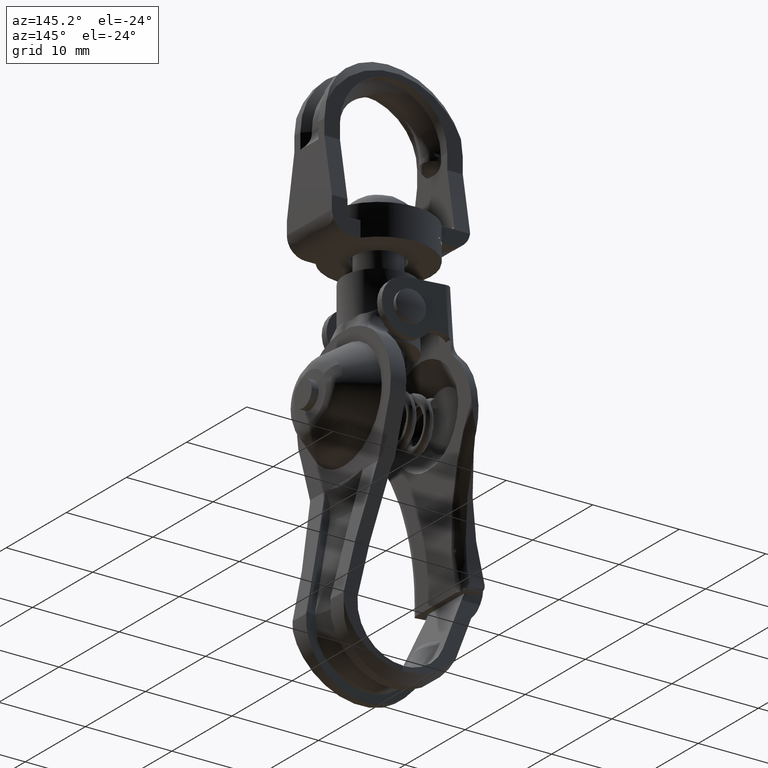
[diagram: clean part render]
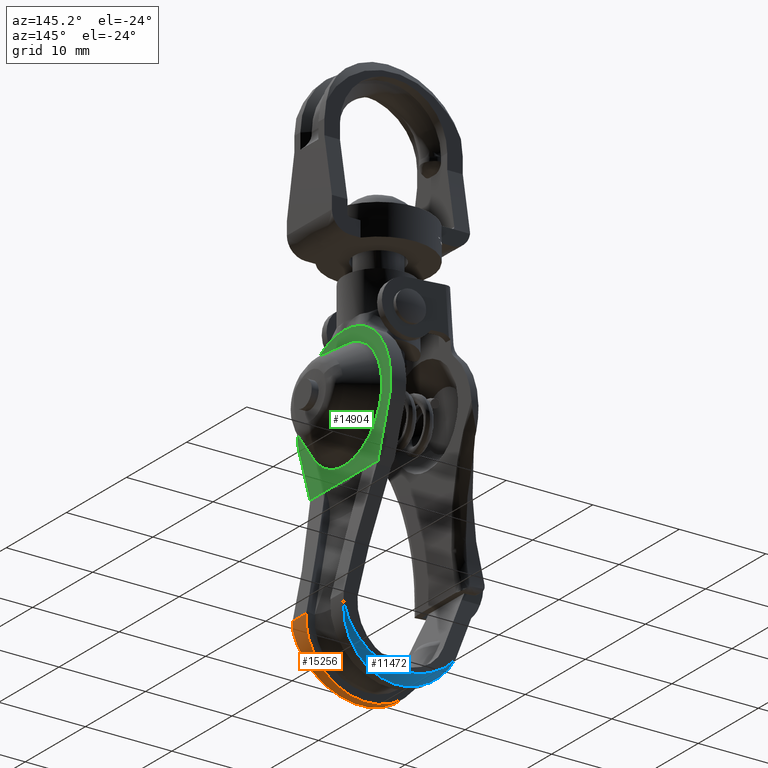
[diagram: same view with three faces highlighted in distinct colors, each labeled with its STEP entity id]
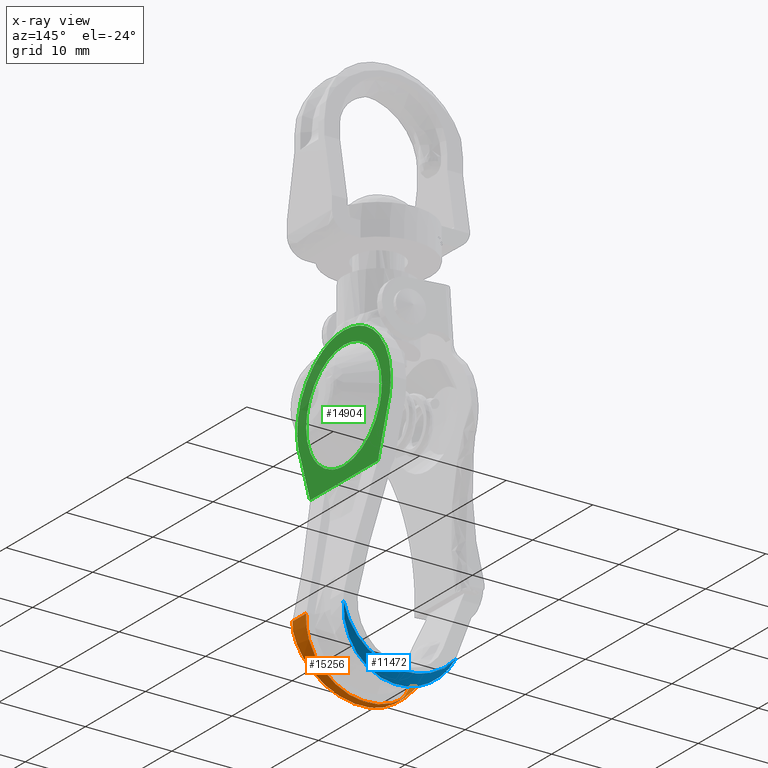
[diagram: x-ray of the same camera — body ghosted, the three highlighted faces saturated]
A machine part, auxiliary view with three faces highlighted in distinct colors.
The next image is the same camera in x-ray (body ghosted, the three faces saturated) — at least one of them is partly hidden behind the body in this view.
Their STEP definitions:

[orange] entity #15256 — the highlighted face is a freeform B-spline surface patch.
#11266=CARTESIAN_POINT('',(-6.294911165316560,-3.726013125309975,-34.561714131132049));
#11267=VERTEX_POINT('',#11266);
#11268=CARTESIAN_POINT('',(6.976595349368139,-4.222251191568015,-32.071941720085903));
#11269=VERTEX_POINT('',#11268);
#11270=CARTESIAN_POINT('',(-6.294911165316506,-3.726013125309961,-34.561714131132042));
#11271=CARTESIAN_POINT('',(-6.129393621015759,-3.660351423743323,-34.902019657072607));
#11272=CARTESIAN_POINT('',(-5.937783730746544,-3.598615233607351,-35.226265352540800));
#11273=CARTESIAN_POINT('',(-5.611619277670555,-3.511465927012832,-35.688712374959891));
#11274=CARTESIAN_POINT('',(-5.496408683270869,-3.483329928498107,-35.838855473840553));
#11275=CARTESIAN_POINT('',(-5.252689760580400,-3.428867148930307,-36.130920590498732));
#11276=CARTESIAN_POINT('',(-5.123715875278982,-3.402469043364859,-36.273233965513462));
#11277=CARTESIAN_POINT('',(-4.723287711978244,-3.327297687705123,-36.680295419215398));
#11278=CARTESIAN_POINT('',(-4.436738155443805,-3.282085581788433,-36.927603569597871));
#11279=CARTESIAN_POINT('',(-3.977966051267060,-3.221175858763297,-37.262956497071407));
#11280=CARTESIAN_POINT('',(-3.820193790287689,-3.202030440055123,-37.368777037994391));
#11281=CARTESIAN_POINT('',(-3.576100945308623,-3.175050256228935,-37.518355934823362));
#11282=CARTESIAN_POINT('',(-3.493496035171673,-3.166346910324346,-37.566688341544257));
#11283=CARTESIAN_POINT('',(-3.325758043545129,-3.149525429993675,-37.660239883071448));
#11284=CARTESIAN_POINT('',(-3.240615426946165,-3.141409028840918,-37.705449742937212));
#11285=CARTESIAN_POINT('',(-2.812627046505352,-3.102665645212646,-37.921545516226047));
#11286=CARTESIAN_POINT('',(-2.459816186674170,-3.077182912880574,-38.064605061876648));
#11287=CARTESIAN_POINT('',(-1.915359105460093,-3.046813707462123,-38.235546252516677));
#11288=CARTESIAN_POINT('',(-1.731320397353028,-3.038007480271493,-38.285215254972648));
#11289=CARTESIAN_POINT('',(-1.451364991959339,-3.026789857177578,-38.348554136003152));
#11290=CARTESIAN_POINT('',(-1.357396150306126,-3.023383071549832,-38.367803997664929));
#11291=CARTESIAN_POINT('',(-1.168136067827110,-3.017242979937711,-38.402515062370348));
#11292=CARTESIAN_POINT('',(-1.072686447019789,-3.014506399207674,-38.417994806336473));
#11293=CARTESIAN_POINT('',(-0.786080924342336,-3.007366217026046,-38.458398536794093));
#11294=CARTESIAN_POINT('',(-0.594363033931727,-3.004015109052603,-38.477381914468467));
#11295=CARTESIAN_POINT('',(-0.305819196721181,-3.001085357140243,-38.493979987677328));
#11296=CARTESIAN_POINT('',(-0.209476543848924,-3.000458770883874,-38.497530650355237));
#11297=CARTESIAN_POINT('',(-0.016466712730330,-2.999908996442597,-38.500646003938208));
#11298=CARTESIAN_POINT('',(0.080255098303637,-2.999987520307551,-38.500200992177753));
#11299=CARTESIAN_POINT('',(0.561111957211355,-3.002127001798904,-38.488077729856272));
#11300=CARTESIAN_POINT('',(0.939850598331322,-3.009370525626041,-38.447006470373637));
#11301=CARTESIAN_POINT('',(1.685893508667817,-3.034573747415013,-38.304555909391048));
#11302=CARTESIAN_POINT('',(2.053197887183401,-3.052532424623793,-38.203177021532312));
#11303=CARTESIAN_POINT('',(2.504879583441795,-3.082088999479557,-38.037189075327213));
#11304=CARTESIAN_POINT('',(2.594754109617569,-3.088354949128322,-38.002034944417382));
#11305=CARTESIAN_POINT('',(2.772003080603978,-3.101483751431498,-37.928468420154530));
#11306=CARTESIAN_POINT('',(2.859596120971681,-3.108360482194911,-37.889978042984488));
#11307=CARTESIAN_POINT('',(3.119329547361713,-3.129919931898489,-37.769467332601451));
#11308=CARTESIAN_POINT('',(3.288429284463184,-3.145530205418706,-37.682415740099380));
#11309=CARTESIAN_POINT('',(3.783758457169155,-3.196074669670395,-37.401465759214020));
#11310=CARTESIAN_POINT('',(4.098098111999272,-3.234693723942991,-37.187904192020298));
#11311=CARTESIAN_POINT('',(4.470627061487063,-3.289544205258264,-36.887268330673074));
#11312=CARTESIAN_POINT('',(4.544149231905403,-3.300854904867121,-36.825395381576932));
#11313=CARTESIAN_POINT('',(4.687800041066733,-3.323939287813808,-36.699390251454709));
#11314=CARTESIAN_POINT('',(4.758100024358218,-3.335737203591931,-36.635124990417282));
#11315=CARTESIAN_POINT('',(4.964500319648450,-3.371896068834216,-36.438606545598923));
#11316=CARTESIAN_POINT('',(5.096108340984531,-3.397020835858165,-36.302636783458141));
#11317=CARTESIAN_POINT('',(5.473287878327494,-3.475483523372556,-35.880146229118708));
#11318=CARTESIAN_POINT('',(5.701329690338712,-3.531887517077721,-35.579138644287141));
#11319=CARTESIAN_POINT('',(5.956481486589272,-3.607939018303713,-35.178228047545133));
#11320=CARTESIAN_POINT('',(6.006102783663753,-3.623461664917209,-35.096632207913032));
#11321=CARTESIAN_POINT('',(6.101541484433014,-3.654831783183686,-34.932233296364601));
#11322=CARTESIAN_POINT('',(6.147424017770756,-3.670695443456317,-34.849343844224087));
#11323=CARTESIAN_POINT('',(6.279658308839588,-3.718824584320099,-34.598644298503487));
#11324=CARTESIAN_POINT('',(6.360605516696523,-3.751627455077079,-34.428806321950482));
#11325=CARTESIAN_POINT('',(6.582262024509650,-3.852233601205621,-33.911361168055727));
#11326=CARTESIAN_POINT('',(6.701920704744655,-3.922220983200006,-33.555873221233448));
#11327=CARTESIAN_POINT('',(6.838535633693344,-4.031995619052830,-33.006658337289458));
#11328=CARTESIAN_POINT('',(6.876902491246755,-4.069458890232749,-32.820576250551532));
#11329=CARTESIAN_POINT('',(6.938134214937051,-4.145129908838868,-32.447630267117063));
#11330=CARTESIAN_POINT('',(6.961158528374663,-4.183441547458976,-32.260241418761680));
#11331=CARTESIAN_POINT('',(6.976595349368139,-4.222251191568015,-32.071941720085903));
#11332=B_SPLINE_CURVE_WITH_KNOTS('',3,(#11270,#11271,#11272,#11273,#11274,#11275,#11276,#11277,#11278,#11279,#11280,#11281,#11282,#11283,#11284,#11285,#11286,#11287,#11288,#11289,#11290,#11291,#11292,#11293,#11294,#11295,#11296,#11297,#11298,#11299,#11300,#11301,#11302,#11303,#11304,#11305,#11306,#11307,#11308,#11309,#11310,#11311,#11312,#11313,#11314,#11315,#11316,#11317,#11318,#11319,#11320,#11321,#11322,#11323,#11324,#11325,#11326,#11327,#11328,#11329,#11330,#11331),.UNSPECIFIED.,.F.,.U.,(4,2,2,2,2,2,2,2,2,2,2,2,2,2,2,2,2,2,2,2,2,2,2,2,2,2,2,2,2,2,4),(0.0,0.062500000000000,0.093749999999999,0.124999999999999,0.187499999999998,0.218749999999998,0.234374999999998,0.249999999999999,0.312499999999998,0.343749999999998,0.359374999999998,0.374999999999998,0.406249999999998,0.421874999999997,0.437499999999997,0.499999999999997,0.562499999999997,0.578124999999996,0.593749999999996,0.624999999999996,0.687499999999995,0.703124999999995,0.718749999999995,0.749999999999994,0.812499999999994,0.828124999999994,0.843749999999994,0.874999999999996,0.937499999999998,0.968749999999999,1.0),.UNSPECIFIED.);
#11333=EDGE_CURVE('',#11267,#11269,#11332,.T.);
#14152=CARTESIAN_POINT('',(-6.419994493614820,-3.696949397518770,-34.289923063810200));
#14153=VERTEX_POINT('',#14152);
#14154=CARTESIAN_POINT('',(-6.294911165316560,-3.726013125309975,-34.561714131132049));
#14155=CARTESIAN_POINT('',(-6.419994493614820,-3.696949397518770,-34.289923063810200));
#14156=QUASI_UNIFORM_CURVE('',1,(#14154,#14155),.UNSPECIFIED.,.F.,.U.);
#14157=EDGE_CURVE('',#11267,#14153,#14156,.T.);
#15120=CARTESIAN_POINT('',(-6.419994493613240,-1.999999999999780,-34.289923063809503));
#15121=VERTEX_POINT('',#15120);
#15127=CARTESIAN_POINT('',(-6.419994493614820,-3.696949397518770,-34.289923063810200));
#15128=CARTESIAN_POINT('',(-6.419994493613240,-1.999999999999780,-34.289923063809503));
#15129=QUASI_UNIFORM_CURVE('',1,(#15127,#15128),.UNSPECIFIED.,.F.,.U.);
#15130=EDGE_CURVE('',#14153,#15121,#15129,.T.);
#15183=CARTESIAN_POINT('',(6.984981803457500,-4.257776583493425,-31.041710565943799));
#15184=VERTEX_POINT('',#15183);
#15185=CARTESIAN_POINT('',(6.976595349368139,-4.222251191568015,-32.071941720085903));
#15186=CARTESIAN_POINT('',(7.004689652684911,-4.234064490244501,-31.729357791518940));
#15187=CARTESIAN_POINT('',(7.007499369536602,-4.245949092670428,-31.384706064677751));
#15188=CARTESIAN_POINT('',(6.984981803457500,-4.257776583493425,-31.041710565943799));
#15189=B_SPLINE_CURVE_WITH_KNOTS('',3,(#15185,#15186,#15187,#15188),.UNSPECIFIED.,.F.,.U.,(4,4),(7.137753E-010,1.031812863438921),.UNSPECIFIED.);
#15190=EDGE_CURVE('',#11269,#15184,#15189,.T.);
#15203=CARTESIAN_POINT('',(-6.523885255953108,-4.314220998080766,-34.037502939339703));
#15204=CARTESIAN_POINT('',(-6.523885255953108,-1.942144475047754,-34.037502939339703));
#15205=CARTESIAN_POINT('',(-4.259077291834003,-4.314220998080766,-39.860293153930186));
#15206=CARTESIAN_POINT('',(-4.259077291834003,-1.942144475047754,-39.860293153930186));
#15207=CARTESIAN_POINT('',(1.782666726997583,-4.314220998080766,-38.269202267657221));
#15208=CARTESIAN_POINT('',(1.782666726997583,-1.942144475047754,-38.269202267657221));
#15209=CARTESIAN_POINT('',(7.824410745829168,-4.314220998080766,-36.678111381384262));
#15210=CARTESIAN_POINT('',(7.824410745829168,-1.942144475047754,-36.678111381384262));
#15211=CARTESIAN_POINT('',(6.927492461099593,-4.314220998080766,-30.495087963347910));
#15212=CARTESIAN_POINT('',(6.927492461099593,-1.942144475047754,-30.495087963347910));
#15220=(BOUNDED_SURFACE()B_SPLINE_SURFACE(1,2,((#15203,#15205,#15207,#15209,#15211),(#15204,#15206,#15208,#15210,#15212)),.UNSPECIFIED.,.F.,.F.,.U.)B_SPLINE_SURFACE_WITH_KNOTS((2,2),(3,2,3),(0.0,2.372076523033012),(0.0,10.678163795943140,21.356327591886291),.UNSPECIFIED.)GEOMETRIC_REPRESENTATION_ITEM()RATIONAL_B_SPLINE_SURFACE(((1.0,0.746057375061700,1.0,0.746057375061700,1.0),(1.0,0.746057375061700,1.0,0.746057375061700,1.0)))REPRESENTATION_ITEM('')SURFACE());
#15221=ORIENTED_EDGE('',*,*,#11333,.F.);
#15222=ORIENTED_EDGE('',*,*,#14157,.T.);
#15223=ORIENTED_EDGE('',*,*,#15130,.T.);
#15224=CARTESIAN_POINT('',(6.984981803457500,-1.999999999999780,-31.041710565943799));
#15225=VERTEX_POINT('',#15224);
#15226=CARTESIAN_POINT('',(-6.419994493613240,-1.999999999999780,-34.289923063809503));
#15227=CARTESIAN_POINT('',(-6.196575789599266,-1.999999999999781,-34.804396297472707));
#15228=CARTESIAN_POINT('',(-5.676984214605167,-1.999999999999779,-35.690445918883292));
#15229=CARTESIAN_POINT('',(-4.683062388789955,-1.999999999999783,-36.760257025354818));
#15230=CARTESIAN_POINT('',(-3.711260028097126,-1.999999999999778,-37.470114464890727));
#15231=CARTESIAN_POINT('',(-2.619223775485742,-1.999999999999778,-38.028281179598849));
#15232=CARTESIAN_POINT('',(-1.493893980919812,-1.999999999999787,-38.380264409298903));
#15233=CARTESIAN_POINT('',(-0.401477124882568,-1.999999999999770,-38.509005549912729));
#15234=CARTESIAN_POINT('',(0.644965307741542,-1.999999999999796,-38.494641965021657));
#15235=CARTESIAN_POINT('',(1.732643210652082,-1.999999999999721,-38.323860460504569));
#15236=CARTESIAN_POINT('',(2.890689070491462,-1.999999999999833,-37.912186092049232));
#15237=CARTESIAN_POINT('',(4.050579656590530,-1.999999999999751,-37.262091619048569));
#15238=CARTESIAN_POINT('',(5.010677944295929,-1.999999999999790,-36.450006167349073));
#15239=CARTESIAN_POINT('',(5.747873701327565,-1.999999999999776,-35.533461654771472));
#15240=CARTESIAN_POINT('',(6.260792317611227,-1.999999999999777,-34.679557703051827));
#15241=CARTESIAN_POINT('',(6.663164678076191,-1.999999999999765,-33.739242446968362));
#15242=CARTESIAN_POINT('',(6.974507486640941,-1.999999999999834,-32.498677115489933));
#15243=CARTESIAN_POINT('',(7.020150923011191,-1.999999999999715,-31.575955119142169));
#15244=CARTESIAN_POINT('',(6.984981803457500,-1.999999999999780,-31.041710565943799));
#15245=B_SPLINE_CURVE_WITH_KNOTS('',3,(#15226,#15227,#15228,#15229,#15230,#15231,#15232,#15233,#15234,#15235,#15236,#15237,#15238,#15239,#15240,#15241,#15242,#15243,#15244),.UNSPECIFIED.,.F.,.U.,(4,1,1,1,1,1,1,1,1,1,1,1,1,1,1,1,4),(0.000000158636478,1.682634189734511,3.059410890263141,4.359656337160422,5.277492821874322,6.730732908437506,7.877992630464776,8.566356378649035,9.866571639084713,11.166812899409210,12.237646842018989,13.843828544301340,14.914634915420880,15.755977691745869,16.826795215292140,17.974057655310219,19.580236588302149),.UNSPECIFIED.);
#15246=EDGE_CURVE('',#15121,#15225,#15245,.T.);
#15247=ORIENTED_EDGE('',*,*,#15246,.T.);
#15248=CARTESIAN_POINT('',(6.984981803457500,-4.257776583493425,-31.041710565943799));
#15249=CARTESIAN_POINT('',(6.984981803457500,-1.999999999999780,-31.041710565943799));
#15250=QUASI_UNIFORM_CURVE('',1,(#15248,#15249),.UNSPECIFIED.,.F.,.U.);
#15251=EDGE_CURVE('',#15184,#15225,#15250,.T.);
#15252=ORIENTED_EDGE('',*,*,#15251,.F.);
#15253=ORIENTED_EDGE('',*,*,#15190,.F.);
#15254=EDGE_LOOP('',(#15221,#15222,#15223,#15247,#15252,#15253));
#15255=FACE_OUTER_BOUND('',#15254,.T.);
#15256=ADVANCED_FACE('',(#15255),#15220,.T.);

[blue] entity #11472 — the highlighted face is a freeform B-spline surface patch.
#11363=CARTESIAN_POINT('',(6.965096057019227,4.252751349794897,-32.002510902440832));
#11364=CARTESIAN_POINT('',(8.197166115089981,2.970770743610454,-32.356739143323622));
#11365=CARTESIAN_POINT('',(2.570986922138259,4.252751349794897,-47.286019307896758));
#11366=CARTESIAN_POINT('',(3.025774046468845,2.970770743610455,-50.343778545980690));
#11367=CARTESIAN_POINT('',(-6.080828318566276,4.252751349794897,-33.942859363206040));
#11368=CARTESIAN_POINT('',(-7.156478451492156,2.970770743610454,-34.640319803783093));
#11376=(BOUNDED_SURFACE()B_SPLINE_SURFACE(1,2,((#11363,#11365,#11367),(#11364,#11366,#11368)),.UNSPECIFIED.,.F.,.F.,.U.)B_SPLINE_SURFACE_WITH_KNOTS((2,2),(3,3),(0.0,1.0),(0.0,21.944738434373502),.UNSPECIFIED.)GEOMETRIC_REPRESENTATION_ITEM()RATIONAL_B_SPLINE_SURFACE(((1.0,0.414693242656239,1.0),(1.0,0.414693242656239,1.0)))REPRESENTATION_ITEM('')SURFACE());
#11377=CARTESIAN_POINT('',(6.976598743297580,4.222246159879741,-32.071900319127849));
#11378=VERTEX_POINT('',#11377);
#11379=CARTESIAN_POINT('',(-6.294936057031010,3.726005604642075,-34.561662953019400));
#11380=VERTEX_POINT('',#11379);
#11381=CARTESIAN_POINT('',(6.976598743297584,4.222246159879818,-32.071900319127870));
#11382=CARTESIAN_POINT('',(6.945784663883057,4.144770282884513,-32.447800560007423));
#11383=CARTESIAN_POINT('',(6.885059598819780,4.069727630031037,-32.817881007272433));
#11384=CARTESIAN_POINT('',(6.749772568077977,3.960479940169405,-33.364345538353717));
#11385=CARTESIAN_POINT('',(6.697275124074397,3.924618839624884,-33.545050686749107));
#11386=CARTESIAN_POINT('',(6.607185420484965,3.871635392987451,-33.813878220447357));
#11387=CARTESIAN_POINT('',(6.575216906247750,3.854085808459536,-33.903234105159889));
#11388=CARTESIAN_POINT('',(6.507628919489538,3.819357784025409,-34.080654446963649));
#11389=CARTESIAN_POINT('',(6.472132597060622,3.802239367284633,-34.168411270142350));
#11390=CARTESIAN_POINT('',(6.286271203571049,3.717837330026109,-34.602498883814597));
#11391=CARTESIAN_POINT('',(6.110927504912791,3.654101660210134,-34.934830363540193));
#11392=CARTESIAN_POINT('',(5.808466379153096,3.563731574900496,-35.411149699435889));
#11393=CARTESIAN_POINT('',(5.701040330074617,3.534484814985473,-35.566208874794867));
#11394=CARTESIAN_POINT('',(5.529768742996876,3.491911804704496,-35.793091719684590));
#11395=CARTESIAN_POINT('',(5.470987386897176,3.477937246730456,-35.867767178282293));
#11396=CARTESIAN_POINT('',(5.349979100802844,3.450421247858796,-36.015176268125167));
#11397=CARTESIAN_POINT('',(5.287690467873047,3.436869915289019,-36.087964070911568));
#11398=CARTESIAN_POINT('',(4.970491620700297,3.370811184321062,-36.443639332386923));
#11399=CARTESIAN_POINT('',(4.696289873284957,3.322853516392489,-36.704613272936861));
#11400=CARTESIAN_POINT('',(4.255052672270868,3.257732167959194,-37.061502605401508));
#11401=CARTESIAN_POINT('',(4.102959725470202,3.237167350196957,-37.174675310289579));
#11402=CARTESIAN_POINT('',(3.867166076225097,3.208024554974930,-37.335587471318028));
#11403=CARTESIAN_POINT('',(3.787290912959415,3.198594740163764,-37.387748559847147));
#11404=CARTESIAN_POINT('',(3.624943806463007,3.180307203790662,-37.489068204934107));
#11405=CARTESIAN_POINT('',(3.542301057192635,3.171432256529571,-37.538322554947150));
#11406=CARTESIAN_POINT('',(3.124534616010497,3.128714363304940,-37.775751775787143));
#11407=CARTESIAN_POINT('',(2.778903866566289,3.100084862181300,-37.936008531226953));
#11408=CARTESIAN_POINT('',(2.065577532458206,3.053234936828373,-38.199097101180662));
#11409=CARTESIAN_POINT('',(1.697883959032860,3.035015124594831,-38.301934428597477));
#11410=CARTESIAN_POINT('',(0.939384857253271,3.009273714574575,-38.447422399656148));
#11411=CARTESIAN_POINT('',(0.556634859696917,3.002031963017089,-38.488485997138092));
#11412=CARTESIAN_POINT('',(0.074630447565147,2.999952986936564,-38.500266350468223));
#11413=CARTESIAN_POINT('',(-0.022143798616320,2.999889202129315,-38.500627831100793));
#11414=CARTESIAN_POINT('',(-0.214785636703123,3.000464622418241,-38.497367183996182));
#11415=CARTESIAN_POINT('',(-0.310730855419942,3.001102034888746,-38.493755219744720));
#11416=CARTESIAN_POINT('',(-0.597460208309297,3.004044696620421,-38.477084222822072));
#11417=CARTESIAN_POINT('',(-0.787139908413564,3.007378400987963,-38.458199904415892));
#11418=CARTESIAN_POINT('',(-1.351854041644458,3.021421080155585,-38.378737618997533));
#11419=CARTESIAN_POINT('',(-1.722592113707491,3.036140856611345,-38.295500471220933));
#11420=CARTESIAN_POINT('',(-2.178718687077375,3.061457151468468,-38.152993256637608));
#11421=CARTESIAN_POINT('',(-2.269576914022588,3.066868696695770,-38.122556770771467));
#11422=CARTESIAN_POINT('',(-2.450546599525485,3.078404112913280,-38.057748006313567));
#11423=CARTESIAN_POINT('',(-2.540805369423667,3.084540209537263,-38.023307343009023));
#11424=CARTESIAN_POINT('',(-2.807919390398335,3.103856079358143,-37.915022304218063));
#11425=CARTESIAN_POINT('',(-2.981859542158948,3.117983753223376,-37.835986792376119));
#11426=CARTESIAN_POINT('',(-3.491622483780025,3.164069075216038,-37.578933482123183));
#11427=CARTESIAN_POINT('',(-3.815465273515928,3.199701831028593,-37.381096527833762));
#11428=CARTESIAN_POINT('',(-4.200207293324571,3.250632395436109,-37.100654039444592));
#11429=CARTESIAN_POINT('',(-4.276146406124681,3.261140163294459,-37.042897988655632));
#11430=CARTESIAN_POINT('',(-4.425979029819674,3.282814379673060,-36.924007358665008));
#11431=CARTESIAN_POINT('',(-4.500028335044544,3.294006596976216,-36.862732292447063));
#11432=CARTESIAN_POINT('',(-4.717344653640002,3.328323912842815,-36.675255553632809));
#11433=CARTESIAN_POINT('',(-4.856104307021620,3.352224839893343,-36.545206327672219));
#11434=CARTESIAN_POINT('',(-5.254585107905593,3.426989067426833,-36.140340403635037));
#11435=CARTESIAN_POINT('',(-5.496619852811262,3.480892815972450,-35.850897545955107));
#11436=CARTESIAN_POINT('',(-5.769698960789184,3.553644438138020,-35.464785001198123));
#11437=CARTESIAN_POINT('',(-5.822832593191885,3.568465035340751,-35.386339648038700));
#11438=CARTESIAN_POINT('',(-5.926100438020504,3.598661160707867,-35.226975833936720));
#11439=CARTESIAN_POINT('',(-5.976303136101066,3.614059118511362,-35.145939787425192));
#11440=CARTESIAN_POINT('',(-6.121816820422133,3.660942127474710,-34.899950477521941));
#11441=CARTESIAN_POINT('',(-6.211840292733574,3.693040089522631,-34.732512106204709));
#11442=CARTESIAN_POINT('',(-6.294936057030982,3.726005604641991,-34.561662953019372));
#11443=B_SPLINE_CURVE_WITH_KNOTS('',3,(#11381,#11382,#11383,#11384,#11385,#11386,#11387,#11388,#11389,#11390,#11391,#11392,#11393,#11394,#11395,#11396,#11397,#11398,#11399,#11400,#11401,#11402,#11403,#11404,#11405,#11406,#11407,#11408,#11409,#11410,#11411,#11412,#11413,#11414,#11415,#11416,#11417,#11418,#11419,#11420,#11421,#11422,#11423,#11424,#11425,#11426,#11427,#11428,#11429,#11430,#11431,#11432,#11433,#11434,#11435,#11436,#11437,#11438,#11439,#11440,#11441,#11442),.UNSPECIFIED.,.F.,.U.,(4,2,2,2,2,2,2,2,2,2,2,2,2,2,2,2,2,2,2,2,2,2,2,2,2,2,2,2,2,2,4),(0.0,0.062499999999999,0.093749999999998,0.109374999999998,0.124999999999998,0.187499999999997,0.218749999999996,0.234374999999997,0.249999999999997,0.312499999999997,0.343749999999997,0.359374999999998,0.374999999999998,0.437499999999997,0.499999999999997,0.562499999999996,0.578124999999996,0.593749999999996,0.624999999999996,0.687499999999996,0.703124999999996,0.718749999999996,0.749999999999996,0.812499999999998,0.828124999999999,0.843749999999999,0.875000000000000,0.937500000000002,0.953125000000001,0.968750000000001,1.0),.UNSPECIFIED.);
#11444=EDGE_CURVE('',#11378,#11380,#11443,.T.);
#11445=ORIENTED_EDGE('',*,*,#11444,.T.);
#11446=CARTESIAN_POINT('',(0.0,4.036329420376470,-37.463670579623653));
#11447=VERTEX_POINT('',#11446);
#11448=CARTESIAN_POINT('',(-6.294936057031010,3.726005604642075,-34.561662953019400));
#11449=CARTESIAN_POINT('',(-5.981244848075840,3.765308078006411,-34.929201864519982));
#11450=CARTESIAN_POINT('',(-5.155530972484928,3.852022499710020,-35.740115820720590));
#11451=CARTESIAN_POINT('',(-3.668412266256892,3.953256204506585,-36.686807529488838));
#11452=CARTESIAN_POINT('',(-1.864400819833749,4.020964902642166,-37.319988575912411));
#11453=CARTESIAN_POINT('',(-0.633985701414041,4.036262440724872,-37.463044216289930));
#11454=CARTESIAN_POINT('',(0.0,4.036329420376470,-37.463670579623653));
#11455=B_SPLINE_CURVE_WITH_KNOTS('',3,(#11448,#11449,#11450,#11451,#11452,#11453,#11454),.UNSPECIFIED.,.F.,.U.,(4,1,1,1,4),(5.895824E-009,1.454422083061434,3.468238219188295,5.258295815101097,7.160232624404019),.UNSPECIFIED.);
#11456=EDGE_CURVE('',#11380,#11447,#11455,.T.);
#11457=ORIENTED_EDGE('',*,*,#11456,.T.);
#11458=CARTESIAN_POINT('',(6.976598743297580,4.222246159879741,-32.071900319127849));
#11459=CARTESIAN_POINT('',(6.814935835194289,4.200816950822878,-32.693367326088037));
#11460=CARTESIAN_POINT('',(6.352025386579128,4.161856593922961,-33.823254294023272));
#11461=CARTESIAN_POINT('',(5.356220440948674,4.115776291548126,-35.159627320083693));
#11462=CARTESIAN_POINT('',(4.311211642585113,4.084203648013456,-36.075265072713357));
#11463=CARTESIAN_POINT('',(3.128242667285524,4.059186673055204,-36.800782731335502));
#11464=CARTESIAN_POINT('',(1.704965134585388,4.041005806020206,-37.328047514665947));
#11465=CARTESIAN_POINT('',(0.568357744692141,4.036332762582119,-37.463572451358459));
#11466=CARTESIAN_POINT('',(0.0,4.036329420376470,-37.463670579623653));
#11467=B_SPLINE_CURVE_WITH_KNOTS('',3,(#11458,#11459,#11460,#11461,#11462,#11463,#11464,#11465,#11466),.UNSPECIFIED.,.F.,.U.,(4,1,1,1,1,1,4),(0.000000053350071,1.927457388918011,3.632529533484495,4.966906698445985,6.078920226296122,7.783992667969108,9.489047265268995),.UNSPECIFIED.);
#11468=EDGE_CURVE('',#11378,#11447,#11467,.T.);
#11469=ORIENTED_EDGE('',*,*,#11468,.F.);
#11470=EDGE_LOOP('',(#11445,#11457,#11469));
#11471=FACE_OUTER_BOUND('',#11470,.T.);
#11472=ADVANCED_FACE('',(#11471),#11376,.T.);

[green] entity #14904 — the highlighted face is a freeform B-spline surface patch.
#10166=CARTESIAN_POINT('',(4.0,-6.282310757708459,-9.400009797004525));
#10167=VERTEX_POINT('',#10166);
#10168=CARTESIAN_POINT('',(3.999999908098824,-4.381484690174220,-13.902233298943580));
#10169=VERTEX_POINT('',#10168);
#10170=CARTESIAN_POINT('',(4.0,-6.282310757708459,-9.400009797004525));
#10171=CARTESIAN_POINT('',(3.999999987725713,-6.282552166164535,-10.001325196831379));
#10172=CARTESIAN_POINT('',(3.999999965848791,-6.127219019829703,-11.073071832433190));
#10173=CARTESIAN_POINT('',(3.999999934185992,-5.472287995299033,-12.624227518828899));
#10174=CARTESIAN_POINT('',(3.999999916655634,-4.812601486783598,-13.483035847839989));
#10175=CARTESIAN_POINT('',(3.999999908098824,-4.381484690174220,-13.902233298943580));
#10176=B_SPLINE_CURVE_WITH_KNOTS('',3,(#10170,#10171,#10172,#10173,#10174,#10175),.UNSPECIFIED.,.F.,.U.,(4,1,1,4),(0.000000019860854,1.803899093483449,3.215626579584005,5.019525653221613),.UNSPECIFIED.);
#10177=EDGE_CURVE('',#10167,#10169,#10176,.T.);
#10240=CARTESIAN_POINT('',(4.000000091585284,4.244267453788509,-14.031814153131190));
#10241=VERTEX_POINT('',#10240);
#10247=CARTESIAN_POINT('',(4.0,6.282310757708459,-9.400008202995997));
#10248=VERTEX_POINT('',#10247);
#10249=CARTESIAN_POINT('',(4.000000091585284,4.244267453788509,-14.031814153131190));
#10250=CARTESIAN_POINT('',(4.000000087599374,4.464263719303781,-13.830231854269810));
#10251=CARTESIAN_POINT('',(4.000000077834865,4.931574780994437,-13.336404537354341));
#10252=CARTESIAN_POINT('',(4.000000062233324,5.466593794066007,-12.547377391993130));
#10253=CARTESIAN_POINT('',(4.000000043757398,5.906973635297845,-11.612981387766309));
#10254=CARTESIAN_POINT('',(4.000000023600149,6.205621039893044,-10.593554304155340));
#10255=CARTESIAN_POINT('',(4.000000008045609,6.282361475271343,-9.806904192740959));
#10256=CARTESIAN_POINT('',(4.0,6.282310757708459,-9.400008202995997));
#10257=B_SPLINE_CURVE_WITH_KNOTS('',3,(#10249,#10250,#10251,#10252,#10253,#10254,#10255,#10256),.UNSPECIFIED.,.F.,.U.,(4,1,1,1,1,4),(0.000000019615642,0.895166538569844,2.034483611414755,2.848257183194273,3.987582912513413,5.208269949920592),.UNSPECIFIED.);
#10258=EDGE_CURVE('',#10241,#10248,#10257,.T.);
#10260=CARTESIAN_POINT('',(4.0,0.0,-3.117698242291691));
#10261=VERTEX_POINT('',#10260);
#10262=CARTESIAN_POINT('',(4.0,6.282310757708459,-9.400008202995997));
#10263=CARTESIAN_POINT('',(4.000000000000008,6.282459223600674,-8.886020877158636));
#10264=CARTESIAN_POINT('',(3.999999999999994,6.190308231705976,-8.140841201798764));
#10265=CARTESIAN_POINT('',(4.000000000000003,5.862535167656848,-7.083761198941629));
#10266=CARTESIAN_POINT('',(4.0,5.410454425298866,-6.127704132944793));
#10267=CARTESIAN_POINT('',(4.000000000000001,4.732744271155975,-5.213968387805409));
#10268=CARTESIAN_POINT('',(3.999999999999997,3.920896995665570,-4.459874097404843));
#10269=CARTESIAN_POINT('',(4.000000000000002,3.152402630003380,-3.939539182630027));
#10270=CARTESIAN_POINT('',(3.999999999999987,2.223759935391784,-3.493278047729835));
#10271=CARTESIAN_POINT('',(4.000000000000042,1.182123109955919,-3.191241499028454));
#10272=CARTESIAN_POINT('',(3.999999999999969,0.385477415637908,-3.117658640468805));
#10273=CARTESIAN_POINT('',(4.0,0.0,-3.117698242291691));
#10274=B_SPLINE_CURVE_WITH_KNOTS('',3,(#10262,#10263,#10264,#10265,#10266,#10267,#10268,#10269,#10270,#10271,#10272,#10273),.UNSPECIFIED.,.F.,.U.,(4,1,1,1,1,1,1,1,1,4),(0.000000071187536,1.541915364638282,2.235784921109220,3.315134190525560,4.702889801432589,5.627988978707870,6.630247569106126,7.478316299314182,8.711857471058385,9.868292131745784),.UNSPECIFIED.);
#10275=EDGE_CURVE('',#10248,#10261,#10274,.T.);
#10277=CARTESIAN_POINT('',(4.0,0.0,-3.117698242291691));
#10278=CARTESIAN_POINT('',(3.999999999999987,-0.616807176497829,-3.117390773140198));
#10279=CARTESIAN_POINT('',(4.000000000000014,-1.618848871377278,-3.266578945817832));
#10280=CARTESIAN_POINT('',(3.999999999999993,-3.005272125220711,-3.830885493932853));
#10281=CARTESIAN_POINT('',(4.000000000000016,-4.183703495019237,-4.628623076048933));
#10282=CARTESIAN_POINT('',(3.999999999999968,-5.151545510485970,-5.709831441024777));
#10283=CARTESIAN_POINT('',(4.000000000000049,-5.749094976638916,-6.795773063566027));
#10284=CARTESIAN_POINT('',(3.999999999999940,-6.167003015150018,-7.986690967143487));
#10285=CARTESIAN_POINT('',(4.000000000000072,-6.282524288068323,-8.834617193555070));
#10286=CARTESIAN_POINT('',(4.0,-6.282310757708459,-9.400009797004525));
#10287=B_SPLINE_CURVE_WITH_KNOTS('',3,(#10277,#10278,#10279,#10280,#10281,#10282,#10283,#10284,#10285,#10286),.UNSPECIFIED.,.F.,.U.,(4,1,1,1,1,1,1,4),(0.000000070909206,1.850302955480803,3.006748045116300,4.471581653161652,6.090581314328082,7.324122598240320,8.172191405664236,9.868293030160988),.UNSPECIFIED.);
#10288=EDGE_CURVE('',#10261,#10167,#10287,.T.);
#10307=CARTESIAN_POINT('',(4.0,0.0,-15.682319757708710));
#10308=VERTEX_POINT('',#10307);
#10309=CARTESIAN_POINT('',(3.999999908098824,-4.381484690174220,-13.902233298943580));
#10310=CARTESIAN_POINT('',(3.999999914930615,-4.055772409627495,-14.219336172336559));
#10311=CARTESIAN_POINT('',(3.999999926268380,-3.515231051732872,-14.641500770166230));
#10312=CARTESIAN_POINT('',(3.999999945350660,-2.605465450565364,-15.139055767119000));
#10313=CARTESIAN_POINT('',(3.999999968220213,-1.515133570677433,-15.551786206494951));
#10314=CARTESIAN_POINT('',(3.999999987816475,-0.580862436599336,-15.682524203705160));
#10315=CARTESIAN_POINT('',(4.0,0.0,-15.682319757708710));
#10316=B_SPLINE_CURVE_WITH_KNOTS('',3,(#10309,#10310,#10311,#10312,#10313,#10314,#10315),.UNSPECIFIED.,.F.,.U.,(4,1,1,1,4),(0.000000019911540,1.363716158257331,2.045577113063966,3.106239663768498,4.848766390766880),.UNSPECIFIED.);
#10317=EDGE_CURVE('',#10169,#10308,#10316,.T.);
#10319=CARTESIAN_POINT('',(4.0,0.0,-15.682319757708710));
#10320=CARTESIAN_POINT('',(4.000000012569972,0.582520521405747,-15.682506361541400));
#10321=CARTESIAN_POINT('',(4.000000035611611,1.650322197353102,-15.532740895851550));
#10322=CARTESIAN_POINT('',(4.000000066769608,3.094253267504583,-14.932256087635800));
#10323=CARTESIAN_POINT('',(4.000000083863873,3.886439846863292,-14.359834063416359));
#10324=CARTESIAN_POINT('',(4.000000091585284,4.244267453788509,-14.031814153131190));
#10325=B_SPLINE_CURVE_WITH_KNOTS('',3,(#10319,#10320,#10321,#10322,#10323,#10324),.UNSPECIFIED.,.F.,.U.,(4,1,1,4),(0.000000019174023,1.747509381140115,3.203766226647398,4.660023797411585),.UNSPECIFIED.);
#10326=EDGE_CURVE('',#10308,#10241,#10325,.T.);
#11049=CARTESIAN_POINT('',(3.999999999999910,2.608254958142945,-17.200009000000200));
#11050=VERTEX_POINT('',#11049);
#11058=CARTESIAN_POINT('',(3.999999999999910,-2.608254958142945,-17.200009000000200));
#11059=VERTEX_POINT('',#11058);
#11094=CARTESIAN_POINT('',(4.0,3.131505772549280,-17.200009000000200));
#11095=VERTEX_POINT('',#11094);
#11170=CARTESIAN_POINT('',(4.0,-3.131517695079855,-17.200009000000200));
#11171=VERTEX_POINT('',#11170);
#11207=CARTESIAN_POINT('',(3.999999999999910,2.608254958142945,-17.200009000000200));
#11208=CARTESIAN_POINT('',(4.0,3.131505772549280,-17.200009000000200));
#11209=QUASI_UNIFORM_CURVE('',1,(#11207,#11208),.UNSPECIFIED.,.F.,.U.);
#11210=EDGE_CURVE('',#11050,#11095,#11209,.T.);
#11222=CARTESIAN_POINT('',(4.0,-3.131517695079855,-17.200009000000200));
#11223=CARTESIAN_POINT('',(3.999999999999910,-2.608254958142945,-17.200009000000200));
#11224=QUASI_UNIFORM_CURVE('',1,(#11222,#11223),.UNSPECIFIED.,.F.,.U.);
#11225=EDGE_CURVE('',#11171,#11059,#11224,.T.);
#13511=CARTESIAN_POINT('',(4.0,-3.559455147856810,-2.459527817085305));
#13512=VERTEX_POINT('',#13511);
#13590=CARTESIAN_POINT('',(4.0,0.0,-1.600009000000195));
#13591=VERTEX_POINT('',#13590);
#13592=CARTESIAN_POINT('',(4.0,0.0,-1.600009000000195));
#13593=CARTESIAN_POINT('',(4.000000000000013,-0.635301669824627,-1.599844299324102));
#13594=CARTESIAN_POINT('',(3.999999999999981,-1.867303544148489,-1.751432026261389));
#13595=CARTESIAN_POINT('',(4.000000000000005,-3.028467967556760,-2.187079070168278));
#13596=CARTESIAN_POINT('',(4.0,-3.559455147856810,-2.459527817085305));
#13597=B_SPLINE_CURVE_WITH_KNOTS('',3,(#13592,#13593,#13594,#13595,#13596),.UNSPECIFIED.,.F.,.U.,(4,1,4),(6.349063E-009,1.905872101332426,3.696257110565624),.UNSPECIFIED.);
#13598=EDGE_CURVE('',#13591,#13512,#13597,.T.);
#13722=CARTESIAN_POINT('',(4.0,3.559455147856770,-2.459527817085290));
#13723=VERTEX_POINT('',#13722);
#13724=CARTESIAN_POINT('',(4.0,3.559455147856770,-2.459527817085290));
#13725=CARTESIAN_POINT('',(4.000000000000006,2.994235680051950,-2.169467273457617));
#13726=CARTESIAN_POINT('',(3.999999999999980,1.828819961189265,-1.742133624644907));
#13727=CARTESIAN_POINT('',(4.000000000000014,0.596803661992894,-1.599897554448365));
#13728=CARTESIAN_POINT('',(4.0,0.0,-1.600009000000195));
#13729=B_SPLINE_CURVE_WITH_KNOTS('',3,(#13724,#13725,#13726,#13727,#13728),.UNSPECIFIED.,.F.,.U.,(4,1,4),(6.348926E-009,1.905872101332354,3.696257110565583),.UNSPECIFIED.);
#13730=EDGE_CURVE('',#13723,#13591,#13729,.T.);
#14088=CARTESIAN_POINT('',(4.0,7.110999569992010,-12.605267977925820));
#14089=VERTEX_POINT('',#14088);
#14090=CARTESIAN_POINT('',(4.0,7.110999569992010,-12.605267977925820));
#14091=CARTESIAN_POINT('',(4.000000000000004,7.403113635350942,-11.957779636374450));
#14092=CARTESIAN_POINT('',(4.000000000000004,7.746713145779738,-10.791673553235359));
#14093=CARTESIAN_POINT('',(3.999999999999993,7.839179070510871,-9.118976616378383));
#14094=CARTESIAN_POINT('',(4.000000000000007,7.671801408517498,-7.827547969376512));
#14095=CARTESIAN_POINT('',(4.000000000000020,7.291246706536303,-6.520032548742353));
#14096=CARTESIAN_POINT('',(3.999999999999989,6.758360740986817,-5.432256117119735));
#14097=CARTESIAN_POINT('',(4.000000000000012,5.929405763059388,-4.275431112124584));
#14098=CARTESIAN_POINT('',(3.999999999999976,4.938409655798489,-3.289819182324259));
#14099=CARTESIAN_POINT('',(4.000000000000019,4.026643355011308,-2.699049493401312));
#14100=CARTESIAN_POINT('',(4.0,3.559455147856770,-2.459527817085290));
#14101=B_SPLINE_CURVE_WITH_KNOTS('',3,(#14090,#14091,#14092,#14093,#14094,#14095,#14096,#14097,#14098,#14099,#14100),.UNSPECIFIED.,.F.,.U.,(4,1,1,1,1,1,1,1,4),(0.000000047701818,2.130929637993971,3.613337600115781,5.003090593122395,6.022202551318122,7.689893058105985,8.616401732064052,10.284106819913410,11.859134565636211),.UNSPECIFIED.);
#14102=EDGE_CURVE('',#14089,#13723,#14101,.T.);
#14611=CARTESIAN_POINT('',(4.0,5.655064014168990,-17.200009000000200));
#14612=VERTEX_POINT('',#14611);
#14613=CARTESIAN_POINT('',(4.0,7.110999569992010,-12.605267977925820));
#14614=CARTESIAN_POINT('',(4.0,5.655064014168990,-17.200009000000200));
#14615=QUASI_UNIFORM_CURVE('',1,(#14613,#14614),.UNSPECIFIED.,.F.,.U.);
#14616=EDGE_CURVE('',#14089,#14612,#14615,.T.);
#14664=CARTESIAN_POINT('',(4.0,-5.655093261884220,-17.200009000000250));
#14665=VERTEX_POINT('',#14664);
#14671=CARTESIAN_POINT('',(4.0,-7.111058140726910,-12.605138033159440));
#14672=VERTEX_POINT('',#14671);
#14673=CARTESIAN_POINT('',(4.0,-5.655093261884220,-17.200009000000250));
#14674=CARTESIAN_POINT('',(4.0,-7.111058140726910,-12.605138033159440));
#14675=QUASI_UNIFORM_CURVE('',1,(#14673,#14674),.UNSPECIFIED.,.F.,.U.);
#14676=EDGE_CURVE('',#14665,#14672,#14675,.T.);
#14853=CARTESIAN_POINT('',(4.0,-8.577829410457373,-17.979228383997871));
#14854=CARTESIAN_POINT('',(4.0,-8.577829410457373,-0.820788639678491));
#14855=CARTESIAN_POINT('',(4.0,8.577821097231228,-17.979228383997871));
#14856=CARTESIAN_POINT('',(4.0,8.577821097231228,-0.820788639678491));
#14857=B_SPLINE_SURFACE_WITH_KNOTS('',1,1,((#14853,#14855),(#14854,#14856)),.UNSPECIFIED.,.F.,.F.,.U.,(2,2),(2,2),(0.0,17.158439744319381),(0.0,17.155650507688598),.UNSPECIFIED.);
#14858=ORIENTED_EDGE('',*,*,#14102,.T.);
#14859=ORIENTED_EDGE('',*,*,#13730,.T.);
#14860=ORIENTED_EDGE('',*,*,#13598,.T.);
#14861=CARTESIAN_POINT('',(4.0,-3.559455147856810,-2.459527817085305));
#14862=CARTESIAN_POINT('',(4.0,-4.136622796152218,-2.755332754892852));
#14863=CARTESIAN_POINT('',(4.000000000000006,-4.984918672690774,-3.334302293469106));
#14864=CARTESIAN_POINT('',(4.0,-6.112902024661727,-4.483130514430114));
#14865=CARTESIAN_POINT('',(4.0,-6.945485871076445,-5.720970072600924));
#14866=CARTESIAN_POINT('',(4.000000000000003,-7.576082756782206,-7.307480392296463));
#14867=CARTESIAN_POINT('',(3.999999999999997,-7.830535484858508,-8.840490257769254));
#14868=CARTESIAN_POINT('',(4.000000000000002,-7.789460265503381,-10.141419401932160));
#14869=CARTESIAN_POINT('',(3.999999999999997,-7.582509000146570,-11.361065015660371));
#14870=CARTESIAN_POINT('',(4.0,-7.326863420235988,-12.126533511597160));
#14871=CARTESIAN_POINT('',(4.0,-7.111058140726910,-12.605138033159440));
#14872=B_SPLINE_CURVE_WITH_KNOTS('',3,(#14861,#14862,#14863,#14864,#14865,#14866,#14867,#14868,#14869,#14870,#14871),.UNSPECIFIED.,.F.,.U.,(4,1,1,1,1,1,1,1,4),(0.000000047700031,1.945614862676662,3.057397595970235,4.817737746377286,6.392710290191301,8.153049203772552,9.450140837512933,10.283983212917031,11.858992028308300),.UNSPECIFIED.);
#14873=EDGE_CURVE('',#13512,#14672,#14872,.T.);
#14874=ORIENTED_EDGE('',*,*,#14873,.T.);
#14875=ORIENTED_EDGE('',*,*,#14676,.F.);
#14876=CARTESIAN_POINT('',(4.0,-5.655093261884220,-17.200009000000250));
#14877=CARTESIAN_POINT('',(4.0,-3.131517695079855,-17.200009000000200));
#14878=QUASI_UNIFORM_CURVE('',1,(#14876,#14877),.UNSPECIFIED.,.F.,.U.);
#14879=EDGE_CURVE('',#14665,#11171,#14878,.T.);
#14880=ORIENTED_EDGE('',*,*,#14879,.T.);
#14881=ORIENTED_EDGE('',*,*,#11225,.T.);
#14882=CARTESIAN_POINT('',(3.999999999999910,-2.608254958142945,-17.200009000000200));
#14883=CARTESIAN_POINT('',(3.999999999999910,2.608254958142945,-17.200009000000200));
#14884=QUASI_UNIFORM_CURVE('',1,(#14882,#14883),.UNSPECIFIED.,.F.,.U.);
#14885=EDGE_CURVE('',#11059,#11050,#14884,.T.);
#14886=ORIENTED_EDGE('',*,*,#14885,.T.);
#14887=ORIENTED_EDGE('',*,*,#11210,.T.);
#14888=CARTESIAN_POINT('',(4.0,3.131505772549280,-17.200009000000200));
#14889=CARTESIAN_POINT('',(4.0,5.655064014168990,-17.200009000000200));
#14890=QUASI_UNIFORM_CURVE('',1,(#14888,#14889),.UNSPECIFIED.,.F.,.U.);
#14891=EDGE_CURVE('',#11095,#14612,#14890,.T.);
#14892=ORIENTED_EDGE('',*,*,#14891,.T.);
#14893=ORIENTED_EDGE('',*,*,#14616,.F.);
#14894=EDGE_LOOP('',(#14858,#14859,#14860,#14874,#14875,#14880,#14881,#14886,#14887,#14892,#14893));
#14895=FACE_OUTER_BOUND('',#14894,.T.);
#14896=ORIENTED_EDGE('',*,*,#10275,.F.);
#14897=ORIENTED_EDGE('',*,*,#10258,.F.);
#14898=ORIENTED_EDGE('',*,*,#10326,.F.);
#14899=ORIENTED_EDGE('',*,*,#10317,.F.);
#14900=ORIENTED_EDGE('',*,*,#10177,.F.);
#14901=ORIENTED_EDGE('',*,*,#10288,.F.);
#14902=EDGE_LOOP('',(#14896,#14897,#14898,#14899,#14900,#14901));
#14903=FACE_BOUND('',#14902,.T.);
#14904=ADVANCED_FACE('',(#14895,#14903),#14857,.F.);